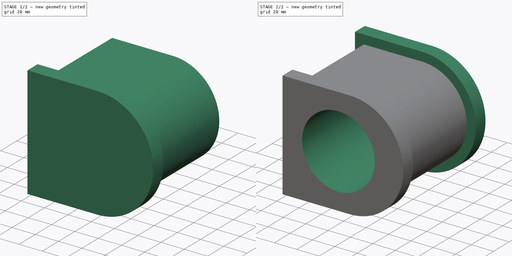
[diagram: build sequence overview — one tinted view per stage of 2, left to right]
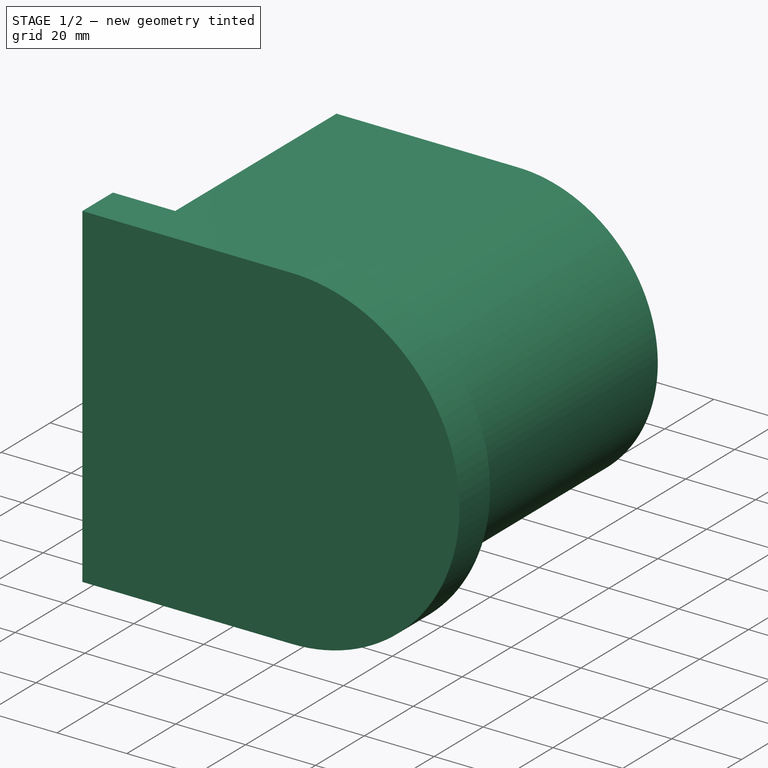
[diagram: stage 1 of 2 — iso view after this stage's code; geometry added in this stage tinted green]
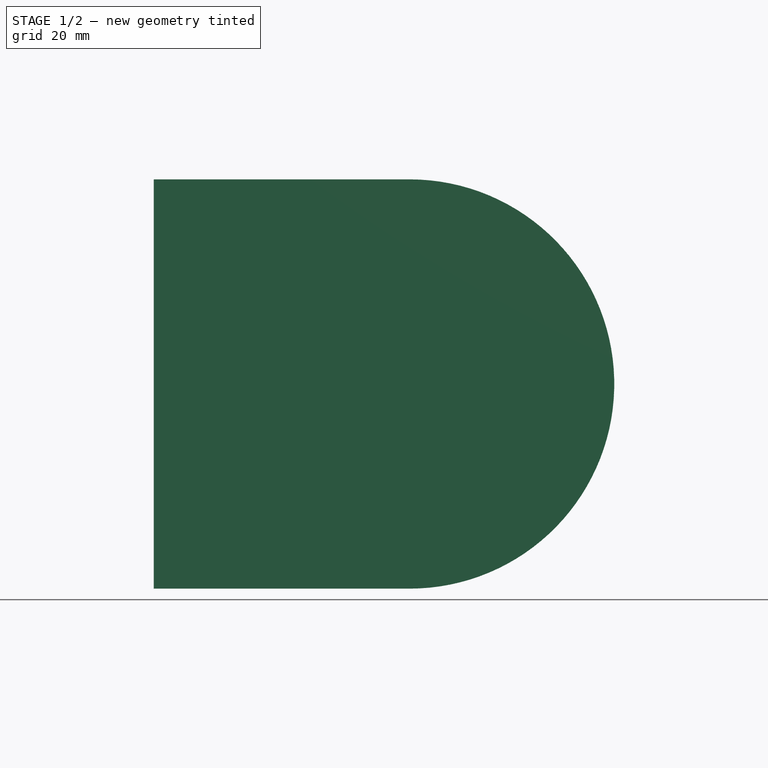
[diagram: stage 1 of 2 — front view after this stage's code; geometry added in this stage tinted green]
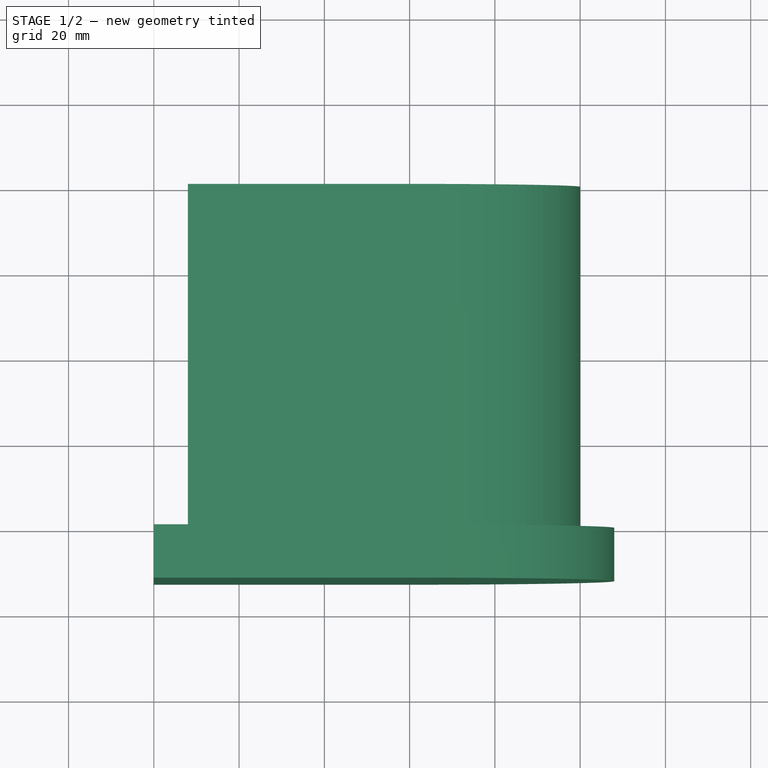
[diagram: stage 1 of 2 — top view after this stage's code; geometry added in this stage tinted green]
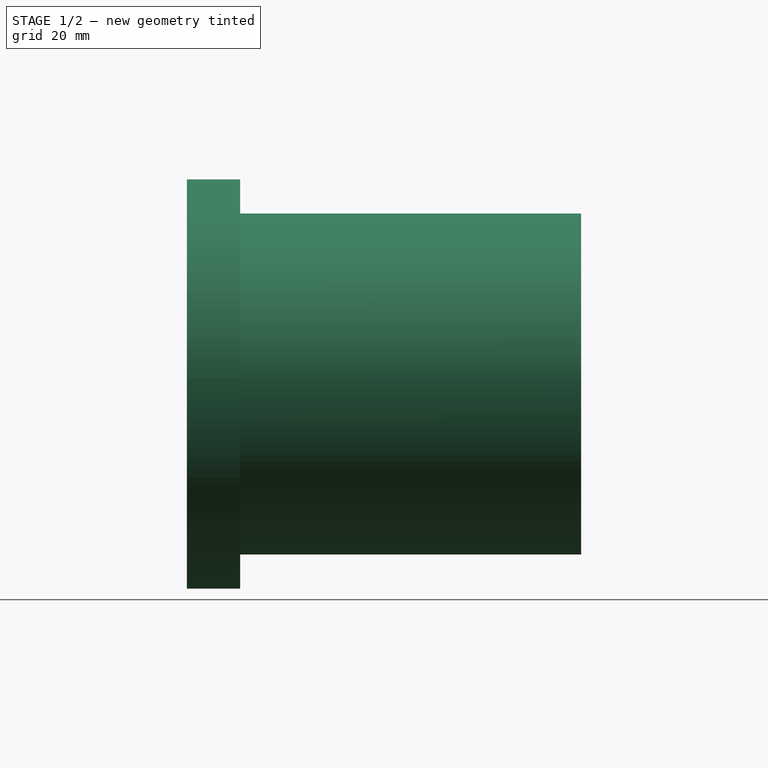
[diagram: stage 1 of 2 — right view after this stage's code; geometry added in this stage tinted green]
FCSTD DOCUMENT  (FreeCAD 0.16RUnknown)
Label: centro
License: All rights reserved
LicenseURL: http://en.wikipedia.org/wiki/All_rights_reserved
objects: Sketcher::SketchObject×4, PartDesign::Pad×3, PartDesign::Pocket×1
note: 12 computed .brp shape members not serialized (recipe doc carries the construction recipe); baked Part::Feature solids carry a one-line shape summary decoded from their .brp

FEATURE [Sketcher::SketchObject] Sketch
  Placement = pos=(0,0,0) rot=(-1,0,0;4.71239rad)
  sketch-geometry (4):
    g0: ArcOfCircle CenterX=0 CenterY=0 CenterZ=0 NormalX=0 NormalY=0 NormalZ=1 Radius=40 StartAngle=4.71239 EndAngle=7.85398
    g1: LineSegment StartX=-52 StartY=40 StartZ=0 EndX=-6.13322e-05 EndY=40 EndZ=0
    g2: LineSegment StartX=-4.15575e-07 StartY=-40 StartZ=0 EndX=-52 EndY=-40 EndZ=0
    g3: LineSegment StartX=-52 StartY=-40 StartZ=0 EndX=-52 EndY=40 EndZ=0
  constraints (12):
    c: Coincident(g0,g-1)
    c: Radius(g0) = 40
    c: Coincident(g2,g3)
    c: Coincident(g3,g1)
    c: Horizontal(g2)
    c: Vertical(g3)
    c: Tangent(g2,g0)
    c: DistanceX(g2,g0) = 52
    c: Coincident(g0,g2)
    c: Coincident(g0,g1)
    c: Tangent(g0,g1)
    c: DistanceY(g2,g1) = 80
FEATURE [PartDesign::Pad] Pad
  Length = 80
  Length2 = 100
  Placement = pos=(0,0,0) rot=(-1,0,0;4.71239rad)
  Sketch = -> Sketch
  Type = 0
FEATURE [Sketcher::SketchObject] Sketch001
  ExternalGeometry = -> [Pad]
  Placement = pos=(0,-80,0) rot=(1,0,0;1.5708rad)
  Support = -> Pad [Face6]
  sketch-geometry (4):
    g0: LineSegment StartX=-60 StartY=48 StartZ=0 EndX=-5.94777e-05 EndY=48 EndZ=0
    g1: LineSegment StartX=-5.9328e-05 StartY=-48 StartZ=0 EndX=-60 EndY=-48 EndZ=0
    g2: LineSegment StartX=-60 StartY=-48 StartZ=0 EndX=-60 EndY=48 EndZ=0
    g3: ArcOfCircle CenterX=0 CenterY=0 CenterZ=0 NormalX=0 NormalY=0 NormalZ=1 Radius=48 StartAngle=4.71239 EndAngle=7.85398
  constraints (14):
    c: Coincident(g1,g2)
    c: Coincident(g2,g0)
    c: Horizontal(g0)
    c: Horizontal(g1)
    c: Vertical(g2)
    c: PointOnObject(g3,g-1)
    c: Coincident(g3,g0)
    c: Coincident(g3,g1)
    c: Symmetric(g1,g0,g-1)
    c: DistanceY(g2,g2) = 96
    c: Tangent(g3,g1)
    c: DistanceX(g1,g3) = 60
    c: DistanceX(g-5,g-1) = 52
    c: Coincident(g3,g-1)
FEATURE [PartDesign::Pad] Pad001
  Length = 12.5
  Length2 = 100
  Placement = pos=(0,0,0) rot=(-1,0,0;4.71239rad)
  Sketch = -> Sketch001
  Type = 0
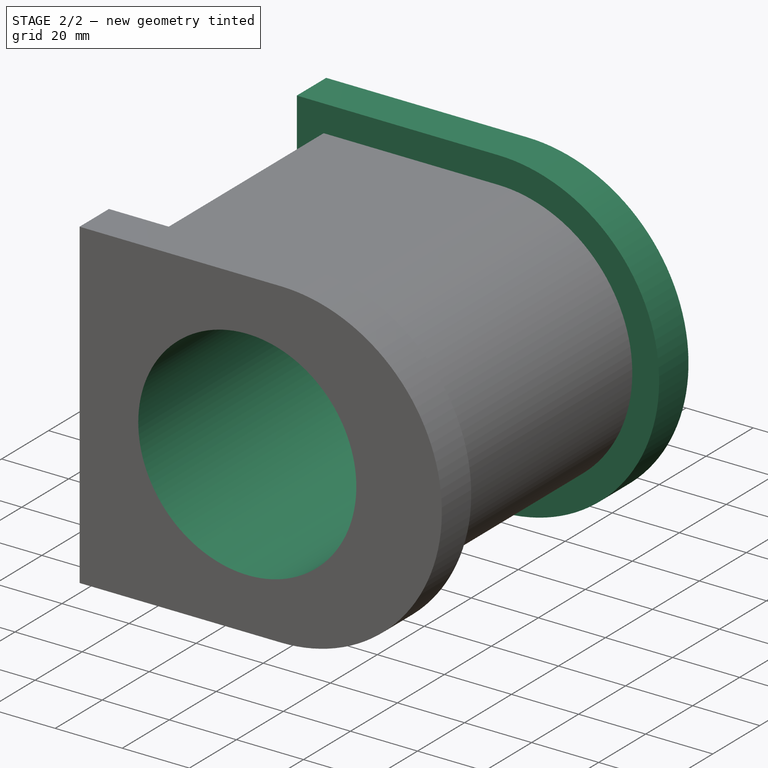
[diagram: stage 2 of 2 — iso view after this stage's code; geometry added in this stage tinted green]
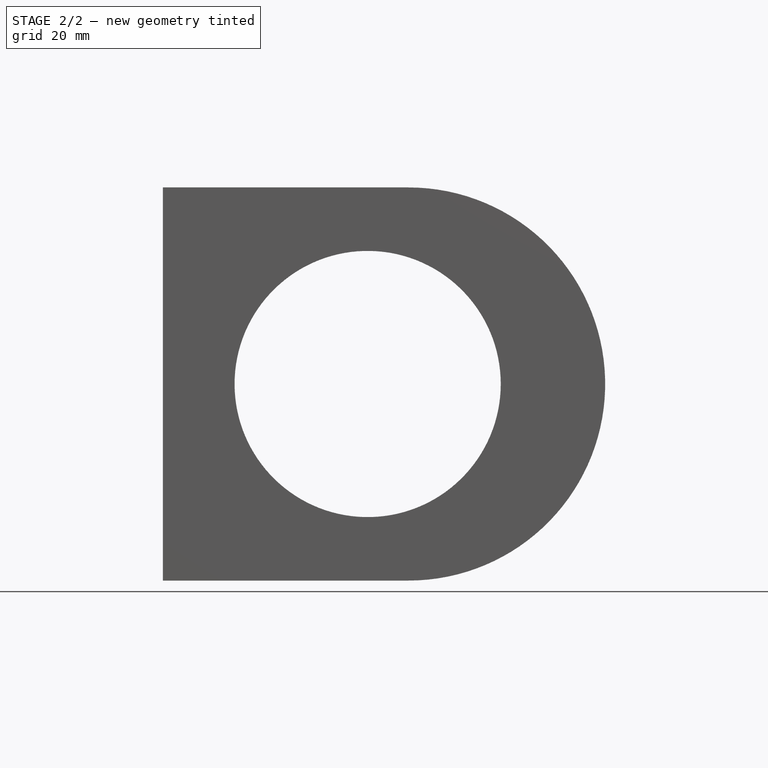
[diagram: stage 2 of 2 — front view after this stage's code; geometry added in this stage tinted green]
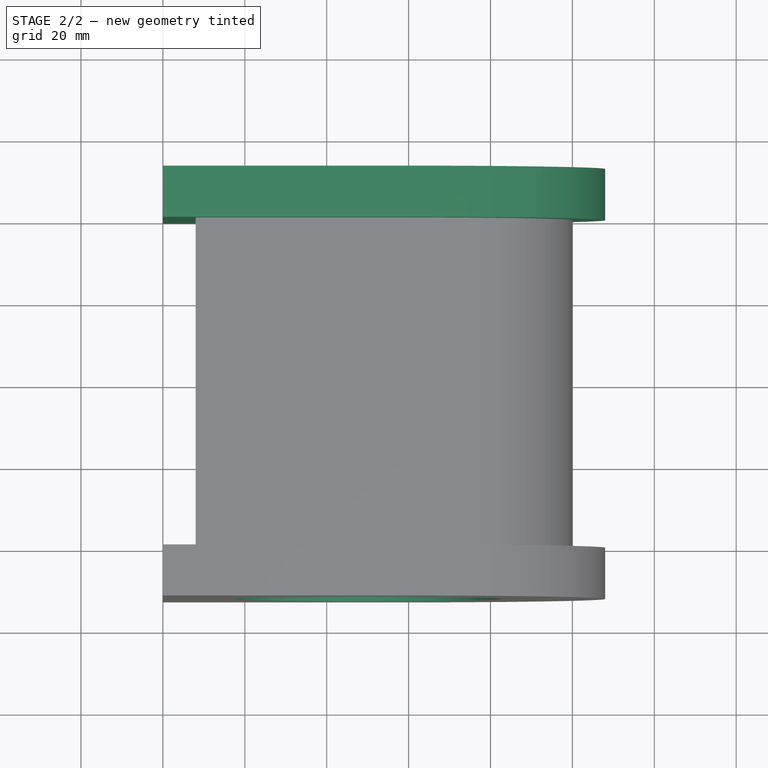
[diagram: stage 2 of 2 — top view after this stage's code; geometry added in this stage tinted green]
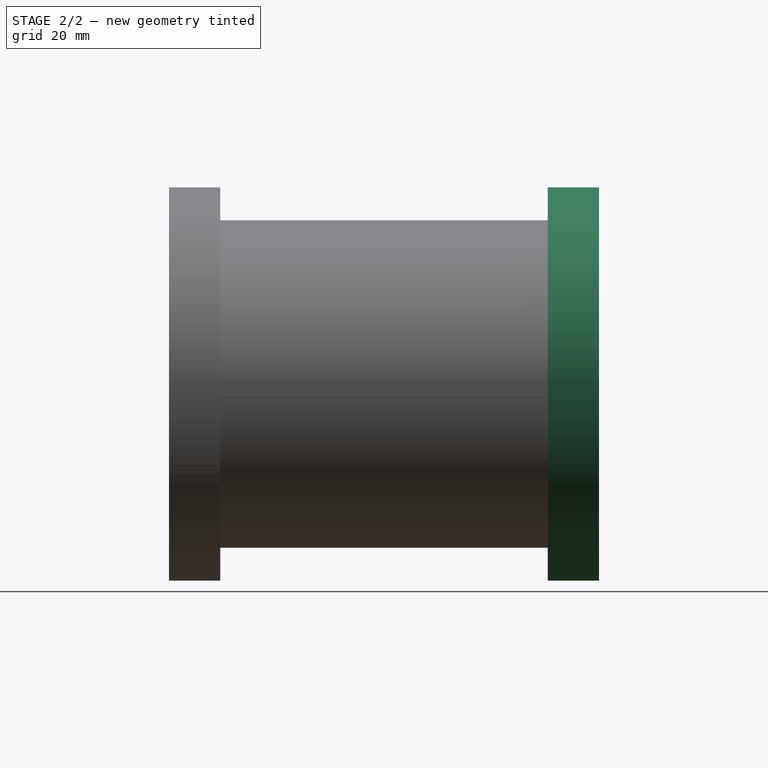
[diagram: stage 2 of 2 — right view after this stage's code; geometry added in this stage tinted green]
FEATURE [Sketcher::SketchObject] Sketch002
  ExternalGeometry = -> [Pad]
  Placement = pos=(0,0,0) rot=(-1,0,0;1.5708rad)
  Support = -> Pad001 [Face1]
  sketch-geometry (4):
    g0: LineSegment StartX=-60 StartY=48 StartZ=0 EndX=-5.94777e-05 EndY=48 EndZ=0
    g1: LineSegment StartX=-5.93279e-05 StartY=-48 StartZ=0 EndX=-60 EndY=-48 EndZ=0
    g2: LineSegment StartX=-60 StartY=-48 StartZ=0 EndX=-60 EndY=48 EndZ=0
    g3: ArcOfCircle CenterX=0 CenterY=0 CenterZ=0 NormalX=0 NormalY=0 NormalZ=1 Radius=48 StartAngle=4.71239 EndAngle=7.85398
  constraints (14):
    c: Coincident(g1,g2)
    c: Coincident(g2,g0)
    c: Horizontal(g0)
    c: Horizontal(g1)
    c: Vertical(g2)
    c: PointOnObject(g3,g-1)
    c: Coincident(g3,g0)
    c: Coincident(g3,g1)
    c: Symmetric(g1,g0,g-1)
    c: DistanceY(g2,g2) = 96
    c: Tangent(g3,g1)
    c: DistanceX(g1,g3) = 60
    c: DistanceX(g-5,g-1) = 52
    c: Coincident(g3,g-1)
FEATURE [PartDesign::Pad] Pad002
  Length = 12.5
  Length2 = 100
  Placement = pos=(0,0,0) rot=(-1,0,0;4.71239rad)
  Sketch = -> Sketch002
  Type = 0
FEATURE [Sketcher::SketchObject] Sketch003
  ExternalGeometry = -> [Pad002]
  Placement = pos=(0,12.5,0) rot=(-1,0,0;1.5708rad)
  Support = -> Pad002 [Face16]
  sketch-geometry (1):
    g0: Circle CenterX=-10 CenterY=0 CenterZ=0 NormalX=0 NormalY=0 NormalZ=1 Radius=32.5
  constraints (3):
    c: PointOnObject(g0,g-1)
    c: Radius(g0) = 32.5
    c: DistanceX(g-3,g0) = 50
FEATURE [PartDesign::Pocket] Pocket
  Length = 5
  Placement = pos=(0,0,0) rot=(-1,0,0;4.71239rad)
  Sketch = -> Sketch003
  Type = 1
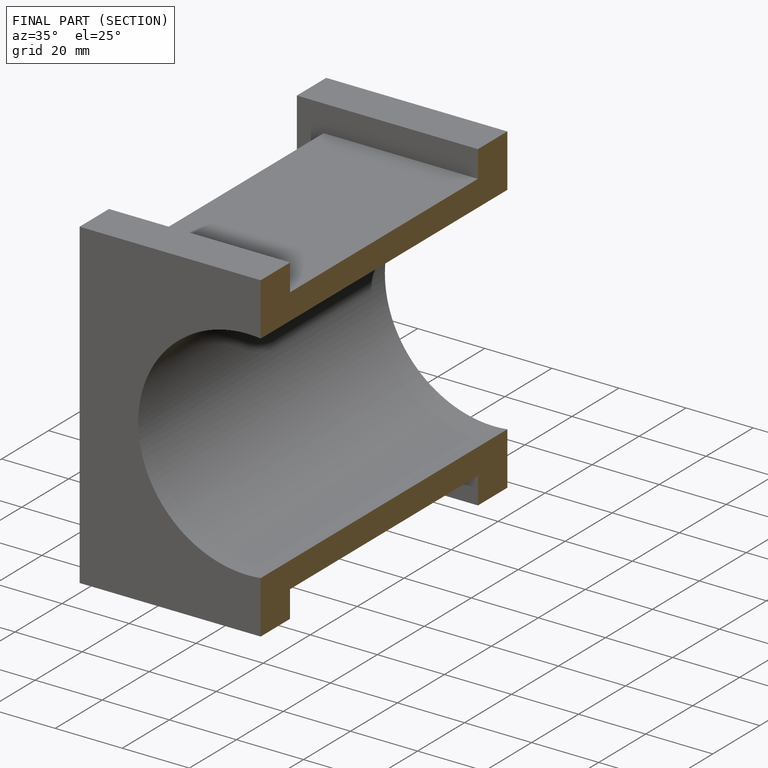
[diagram: finished part — half-section view (interior)]
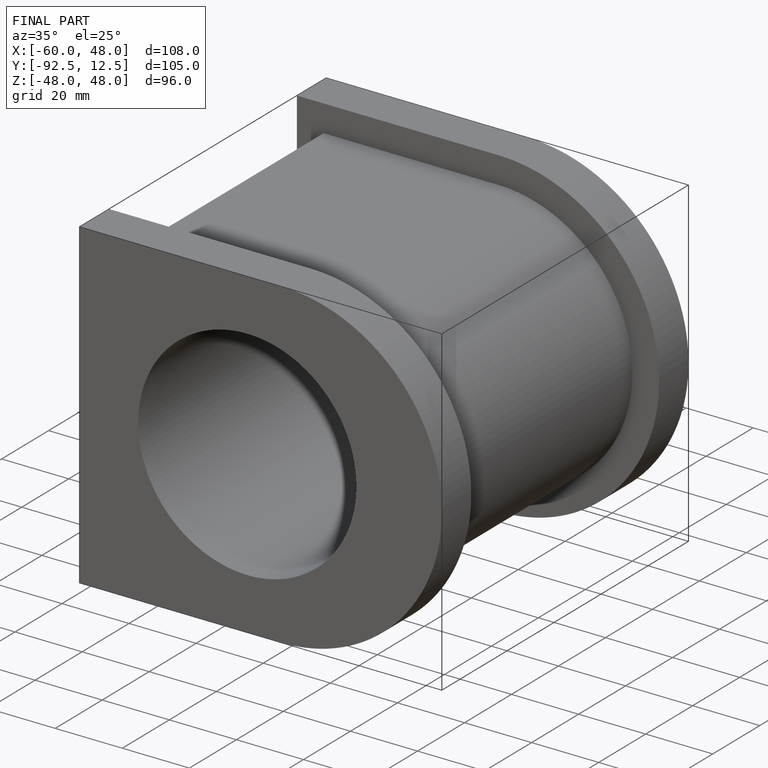
[diagram: finished part — iso view with bounding-box wireframe]
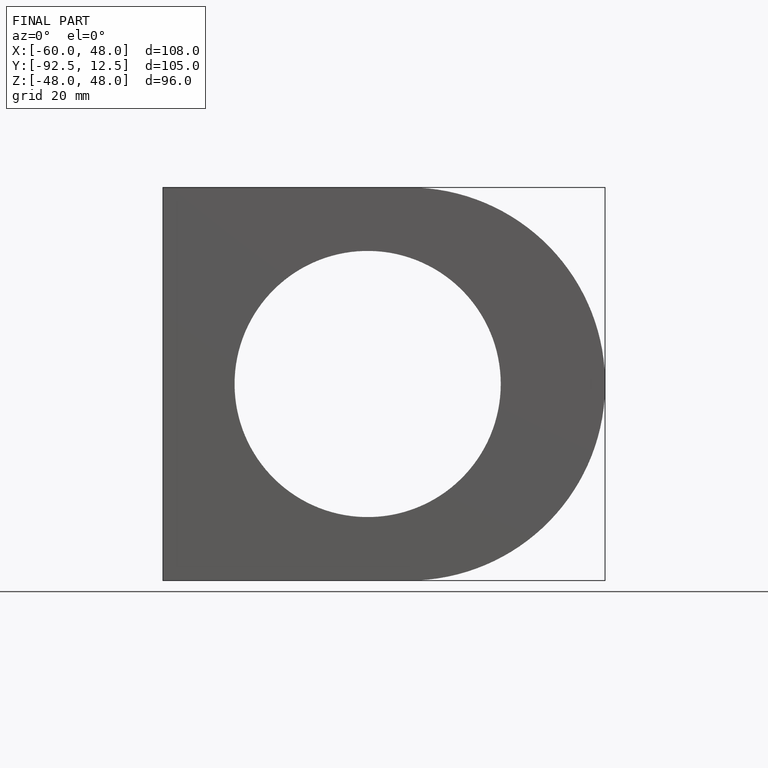
[diagram: finished part — front view with bounding-box wireframe]
